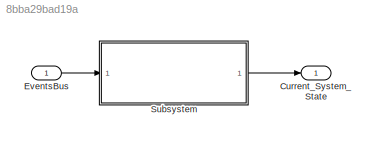
MODEL slx_8bba29bad19a
KIND model
CONFIG AbsTol = auto
CONFIG EnableMultiTasking = off
CONFIG FixedStep = auto
CONFIG MaxStep = auto
CONFIG MinStep = auto
CONFIG RelTol = 1e-3
CONFIG SampleTimeConstraint = Unconstrained
CONFIG SolverName = VariableStepAuto
CONFIG StartTime = 0.0
CONFIG StopTime = inf
BLOCK [Outport] Current_System_State
  OutDataTypeStr = Bus: CurrentStateBus
BLOCK [Inport] EventsBus
  NameLocation = left
  OutDataTypeStr = Bus: EventsBus
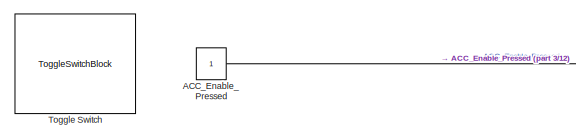
[diagram: Subsystem - part 1/12, top left region]
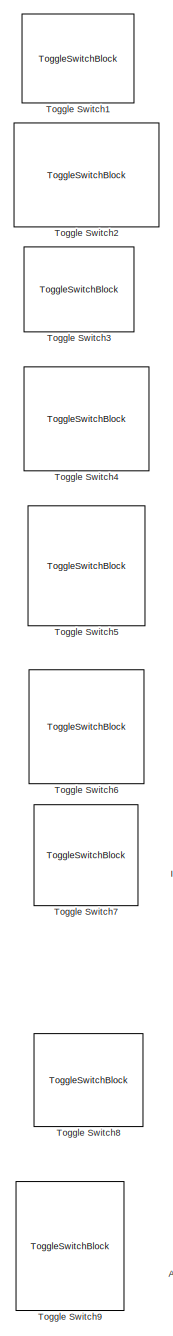
[diagram: Subsystem - part 2/12, top left region]
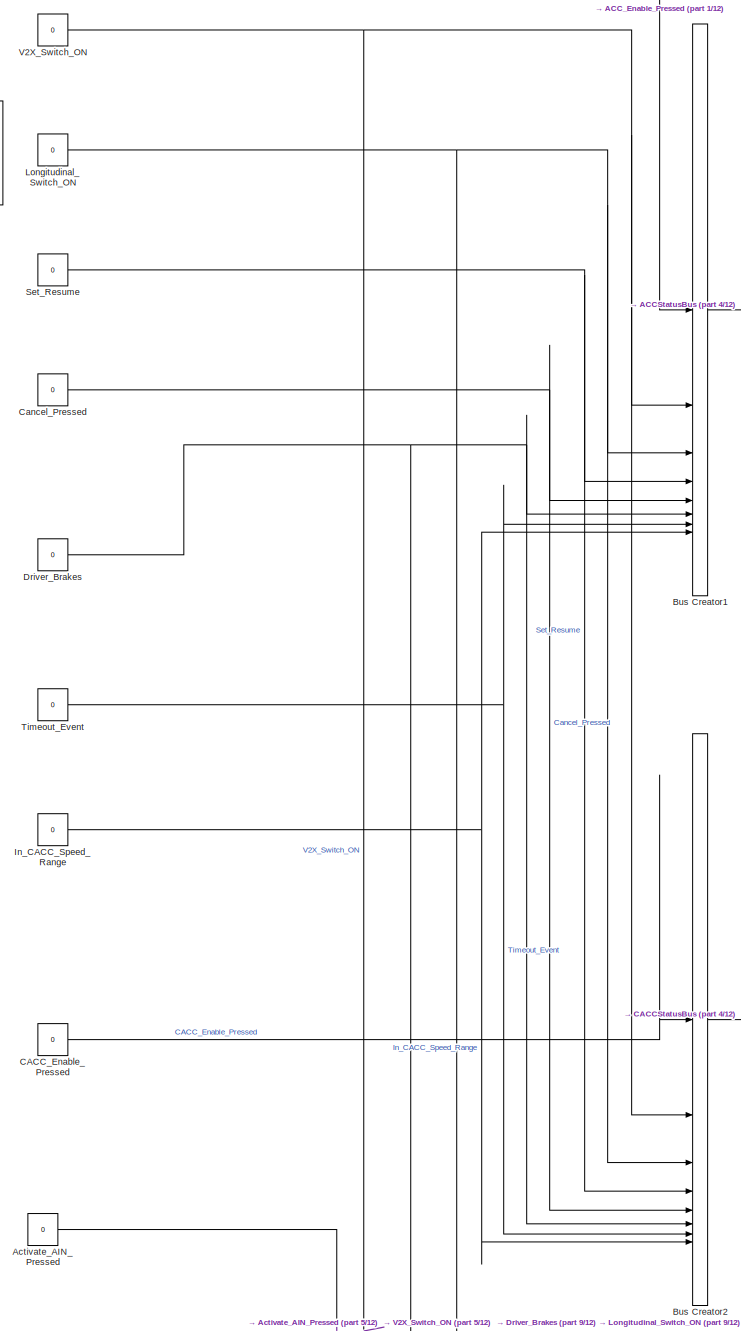
[diagram: Subsystem - part 3/12, top left region]
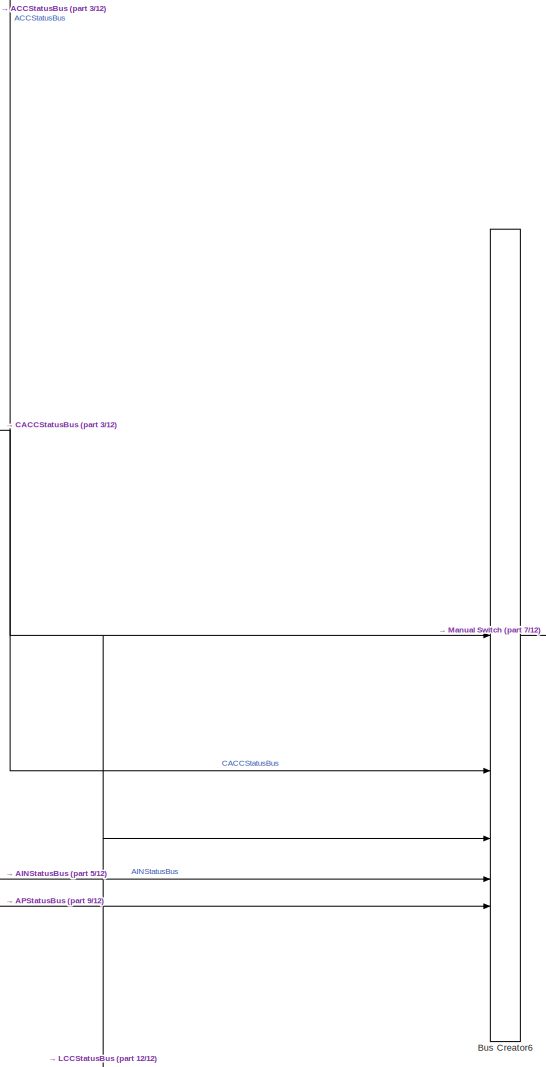
[diagram: Subsystem - part 4/12, top center region]
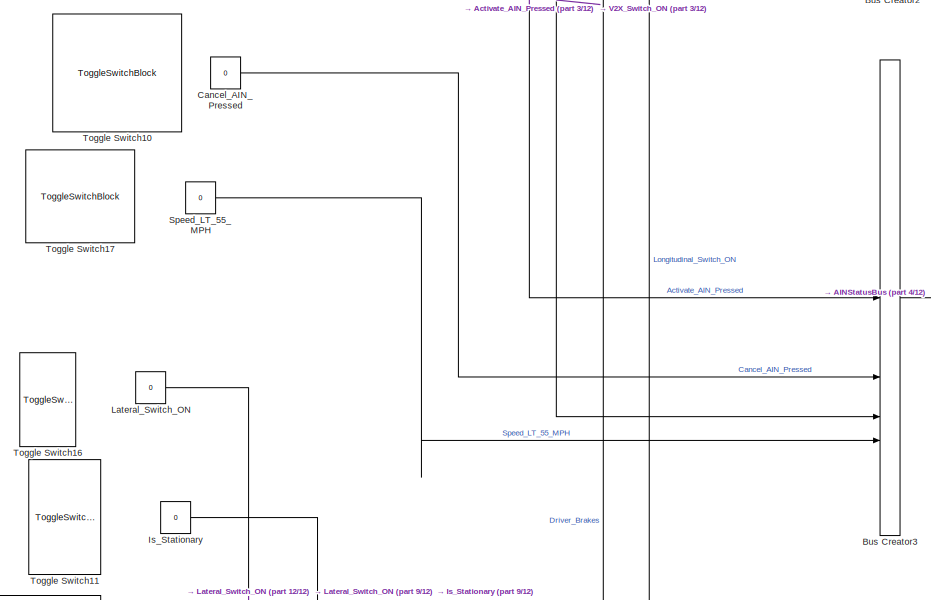
[diagram: Subsystem - part 5/12, middle left region]
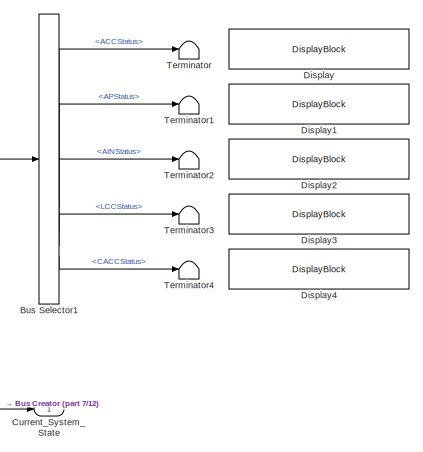
[diagram: Subsystem - part 6/12, middle right region]
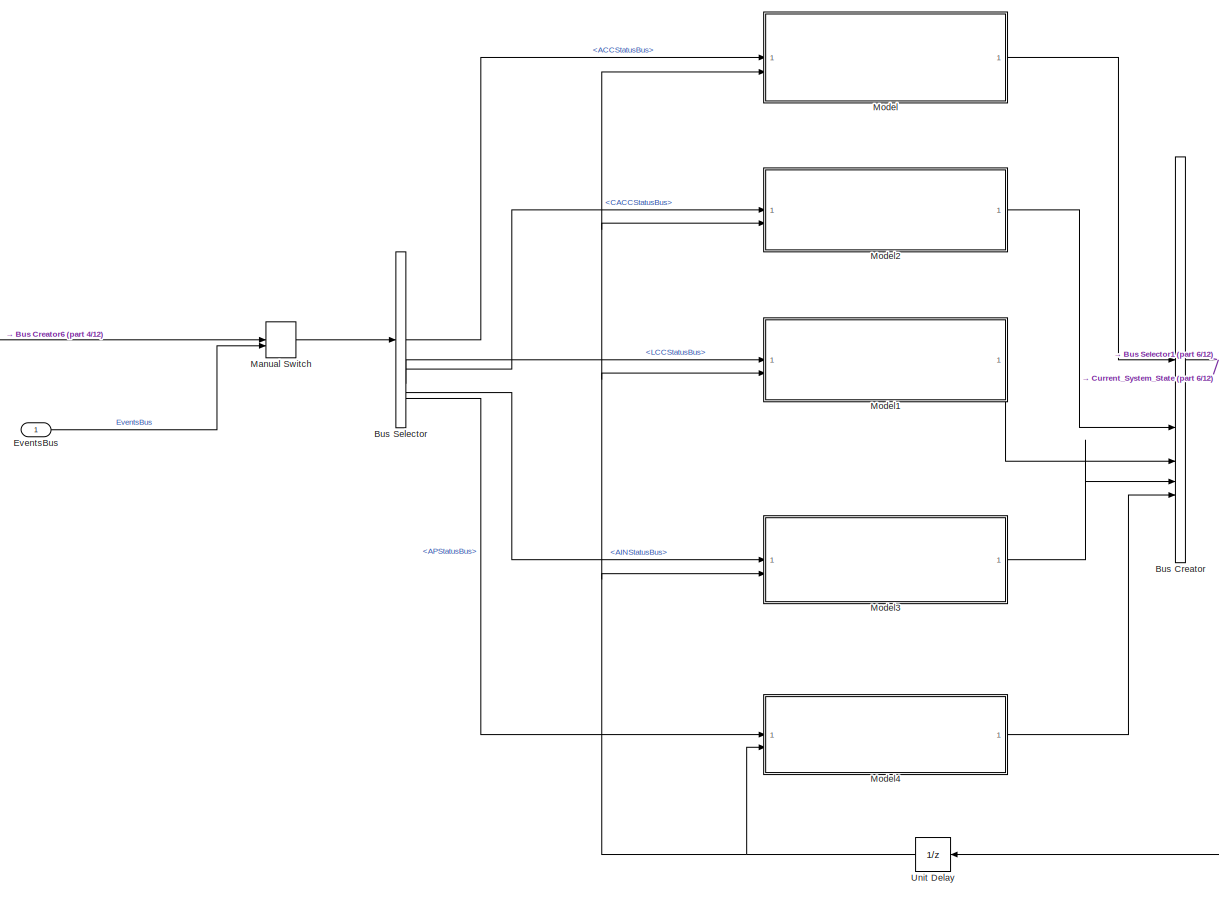
[diagram: Subsystem - part 7/12, middle right region]
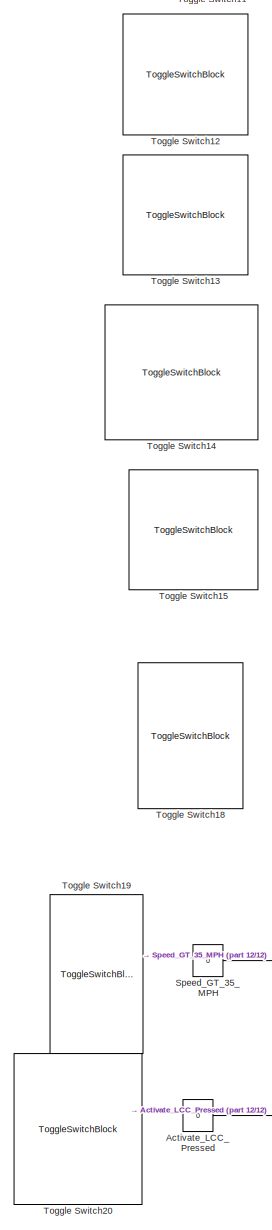
[diagram: Subsystem - part 8/12, middle left region]
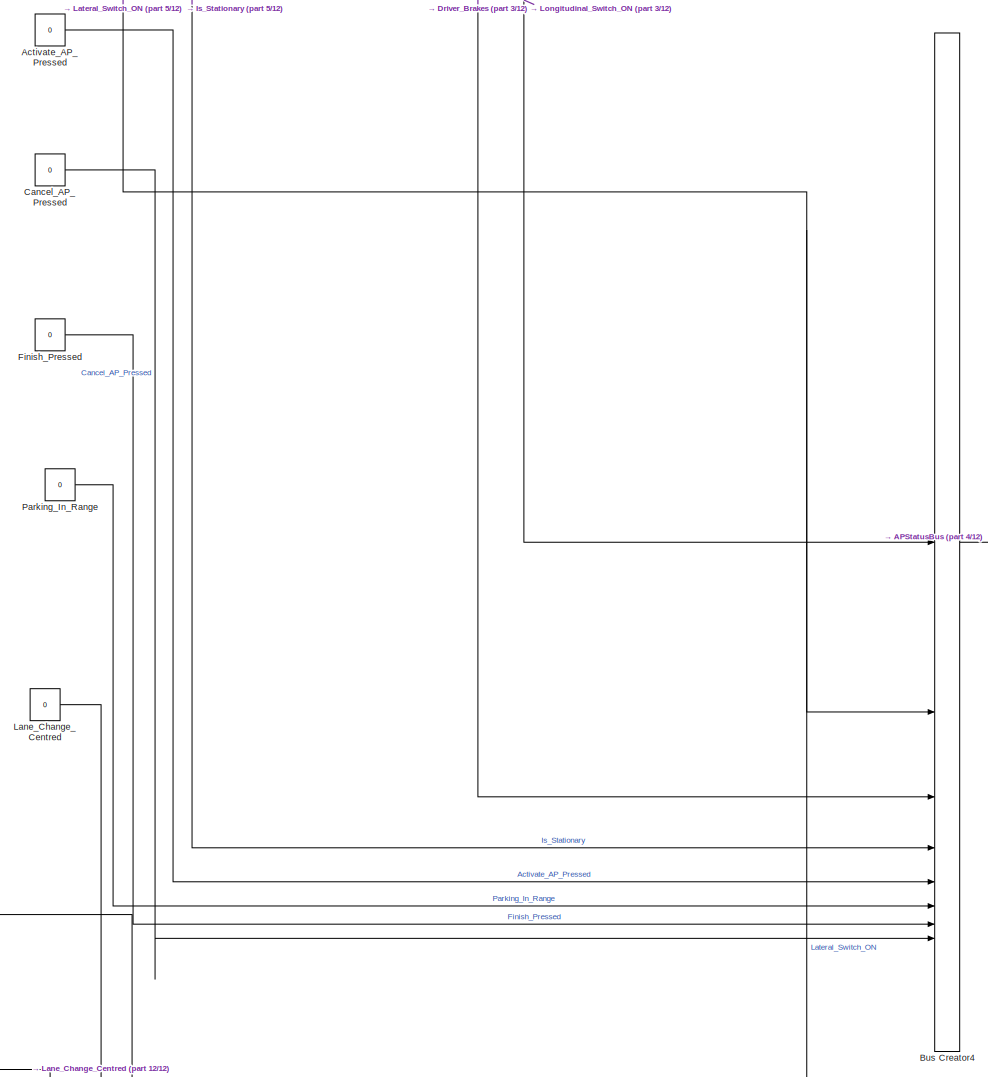
[diagram: Subsystem - part 9/12, middle left region]
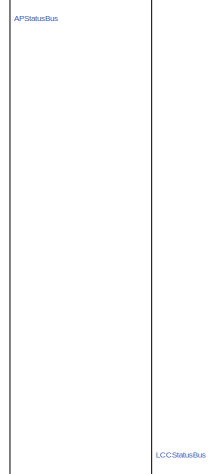
[diagram: Subsystem - part 10/12, middle left region]
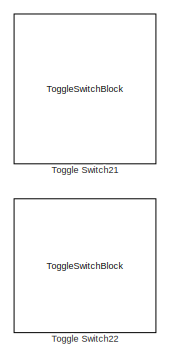
[diagram: Subsystem - part 11/12, bottom left region]
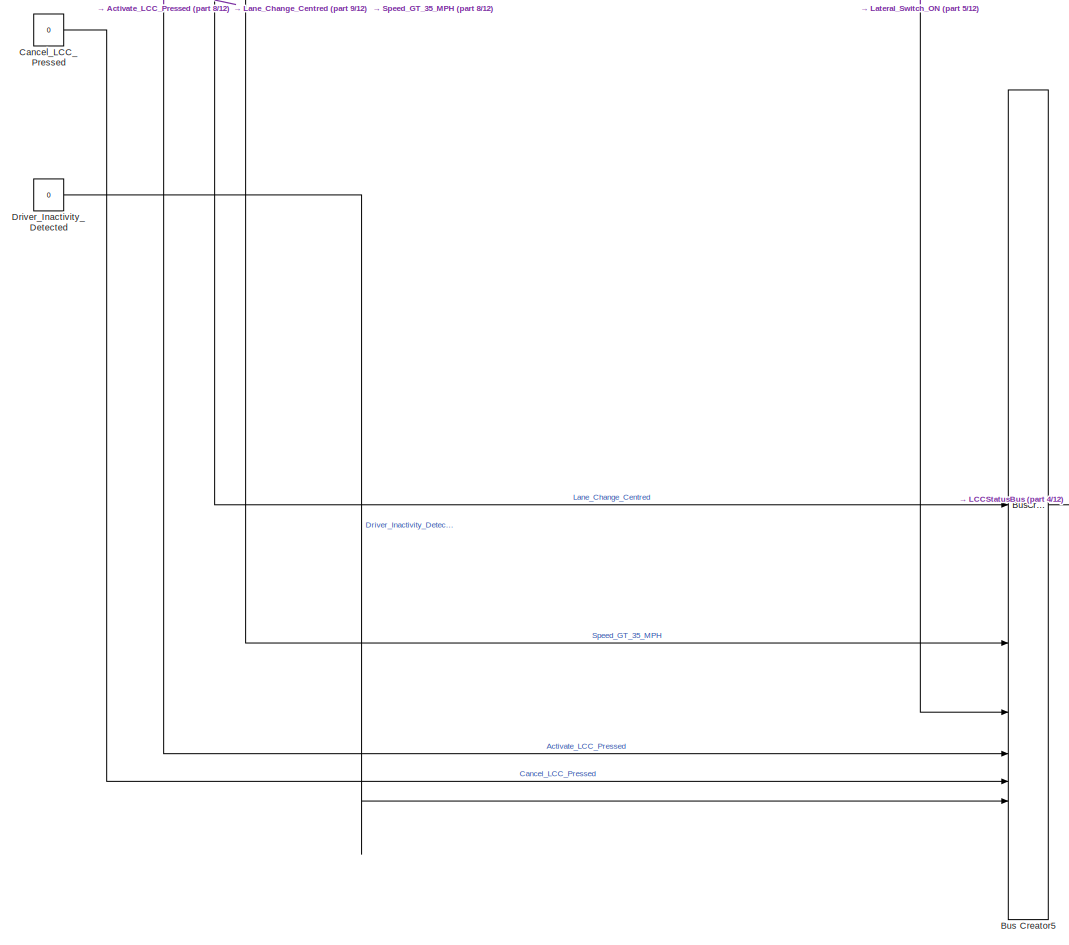
[diagram: Subsystem - part 12/12, bottom left region]
BLOCK [SubSystem] Subsystem
BLOCK [Constant] Subsystem/ACC_Enable_Pressed
  OutDataTypeStr = boolean
BLOCK [Constant] Subsystem/Activate_AIN_Pressed
  OutDataTypeStr = boolean
  Value = 0
BLOCK [Constant] Subsystem/Activate_AP_Pressed
  OutDataTypeStr = boolean
  Value = 0
BLOCK [Constant] Subsystem/Activate_LCC_Pressed
  OutDataTypeStr = boolean
  Value = 0
BLOCK [BusCreator] Subsystem/Bus Creator
  DisplayOption = bar
  InheritFromInputs = off
  Inputs = 5
  OutDataTypeStr = Bus: CurrentStateBus
BLOCK [BusCreator] Subsystem/Bus Creator1
  DisplayOption = bar
  InheritFromInputs = on
  Inputs = 8
  OutDataTypeStr = Bus: ACCStatusBus
BLOCK [BusCreator] Subsystem/Bus Creator2
  DisplayOption = bar
  InheritFromInputs = on
  Inputs = 8
  OutDataTypeStr = Bus: CACCStatusBus
BLOCK [BusCreator] Subsystem/Bus Creator3
  DisplayOption = bar
  InheritFromInputs = on
  Inputs = 4
  OutDataTypeStr = Bus: AINStatusBus
BLOCK [BusCreator] Subsystem/Bus Creator4
  DisplayOption = bar
  InheritFromInputs = on
  Inputs = 8
BLOCK [BusCreator] Subsystem/Bus Creator5
  DisplayOption = bar
  InheritFromInputs = on
  Inputs = 6
  OutDataTypeStr = Bus: LCCStatusBus
BLOCK [BusCreator] Subsystem/Bus Creator6
  DisplayOption = bar
  InheritFromInputs = on
  Inputs = 5
  OutDataTypeStr = Bus: EventsBus
BLOCK [BusSelector] Subsystem/Bus Selector
  OutputSignals = ACCStatusBus,CACCStatusBus,LCCStatusBus,AINStatusBus,APStatusBus
BLOCK [BusSelector] Subsystem/Bus Selector1
  OutputSignals = ACCStatus,APStatus,AINStatus,LCCStatus,CACCStatus
BLOCK [Constant] Subsystem/CACC_Enable_Pressed
  OutDataTypeStr = boolean
  Value = 0
BLOCK [Constant] Subsystem/Cancel_AIN_Pressed
  OutDataTypeStr = boolean
  Value = 0
BLOCK [Constant] Subsystem/Cancel_AP_Pressed
  OutDataTypeStr = boolean
  Value = 0
BLOCK [Constant] Subsystem/Cancel_LCC_Pressed
  OutDataTypeStr = boolean
  Value = 0
BLOCK [Constant] Subsystem/Cancel_Pressed
  OutDataTypeStr = boolean
  Value = 0
BLOCK [Outport] Subsystem/Current_System_State
BLOCK [DisplayBlock] Subsystem/Display
  GridColor = [0.502, 0.502, 0.502]
  LabelPosition = Hide
  Transparency = 1
BLOCK [DisplayBlock] Subsystem/Display1
  GridColor = [0.502, 0.502, 0.502]
  LabelPosition = Hide
  Transparency = 1
BLOCK [DisplayBlock] Subsystem/Display2
  GridColor = [0.502, 0.502, 0.502]
  LabelPosition = Hide
  Transparency = 1
BLOCK [DisplayBlock] Subsystem/Display3
  GridColor = [0.502, 0.502, 0.502]
  LabelPosition = Hide
  Transparency = 1
BLOCK [DisplayBlock] Subsystem/Display4
  GridColor = [0.502, 0.502, 0.502]
  LabelPosition = Hide
  Transparency = 1
BLOCK [Constant] Subsystem/Driver_Brakes
  OutDataTypeStr = boolean
  Value = 0
BLOCK [Constant] Subsystem/Driver_Inactivity_Detected
  OutDataTypeStr = boolean
  Value = 0
BLOCK [Inport] Subsystem/EventsBus
  OutDataTypeStr = Bus: EventsBus
BLOCK [Constant] Subsystem/Finish_Pressed
  OutDataTypeStr = boolean
  Value = 0
BLOCK [Constant] Subsystem/In_CACC_Speed_Range
  OutDataTypeStr = boolean
  Value = 0
BLOCK [Constant] Subsystem/Is_Stationary
  OutDataTypeStr = boolean
  Value = 0
BLOCK [Constant] Subsystem/Lane_Change_Centred
  OutDataTypeStr = boolean
  Value = 0
BLOCK [Constant] Subsystem/Lateral_Switch_ON
  NameLocation = top
  OutDataTypeStr = boolean
  Value = 0
BLOCK [Constant] Subsystem/Longitudinal_Switch_ON
  OutDataTypeStr = boolean
  Value = 0
BLOCK [ManualSwitch] Subsystem/Manual Switch
BLOCK [ModelReference] Subsystem/Model
  ModelNameDialog = acc
  ModelReferenceVersion = 1.53
BLOCK [ModelReference] Subsystem/Model1
  ModelNameDialog = lcc
  ModelReferenceVersion = 1.39
BLOCK [ModelReference] Subsystem/Model2
  ModelNameDialog = cacc
  ModelReferenceVersion = 1.51
BLOCK [ModelReference] Subsystem/Model3
  ModelNameDialog = ain
  ModelReferenceVersion = 1.47
BLOCK [ModelReference] Subsystem/Model4
  ModelNameDialog = ap
  ModelReferenceVersion = 1.39
BLOCK [Constant] Subsystem/Parking_In_Range
  OutDataTypeStr = boolean
  Value = 0
BLOCK [Constant] Subsystem/Set_Resume
  OutDataTypeStr = boolean
  Value = 0
BLOCK [Constant] Subsystem/Speed_GT_35_MPH
  NameLocation = top
  OutDataTypeStr = boolean
  Value = 0
BLOCK [Constant] Subsystem/Speed_LT_55_MPH
  OutDataTypeStr = boolean
  Value = 0
BLOCK [Terminator] Subsystem/Terminator
BLOCK [Terminator] Subsystem/Terminator1
BLOCK [Terminator] Subsystem/Terminator2
BLOCK [Terminator] Subsystem/Terminator3
BLOCK [Terminator] Subsystem/Terminator4
BLOCK [Constant] Subsystem/Timeout_Event
  OutDataTypeStr = boolean
  Value = 0
BLOCK [ToggleSwitchBlock] Subsystem/Toggle Switch
BLOCK [ToggleSwitchBlock] Subsystem/Toggle Switch1
BLOCK [ToggleSwitchBlock] Subsystem/Toggle Switch10
BLOCK [ToggleSwitchBlock] Subsystem/Toggle Switch11
BLOCK [ToggleSwitchBlock] Subsystem/Toggle Switch12
BLOCK [ToggleSwitchBlock] Subsystem/Toggle Switch13
BLOCK [ToggleSwitchBlock] Subsystem/Toggle Switch14
BLOCK [ToggleSwitchBlock] Subsystem/Toggle Switch15
BLOCK [ToggleSwitchBlock] Subsystem/Toggle Switch16
BLOCK [ToggleSwitchBlock] Subsystem/Toggle Switch17
BLOCK [ToggleSwitchBlock] Subsystem/Toggle Switch18
BLOCK [ToggleSwitchBlock] Subsystem/Toggle Switch19
BLOCK [ToggleSwitchBlock] Subsystem/Toggle Switch2
BLOCK [ToggleSwitchBlock] Subsystem/Toggle Switch20
BLOCK [ToggleSwitchBlock] Subsystem/Toggle Switch21
BLOCK [ToggleSwitchBlock] Subsystem/Toggle Switch22
BLOCK [ToggleSwitchBlock] Subsystem/Toggle Switch3
BLOCK [ToggleSwitchBlock] Subsystem/Toggle Switch4
BLOCK [ToggleSwitchBlock] Subsystem/Toggle Switch5
BLOCK [ToggleSwitchBlock] Subsystem/Toggle Switch6
BLOCK [ToggleSwitchBlock] Subsystem/Toggle Switch7
BLOCK [ToggleSwitchBlock] Subsystem/Toggle Switch8
BLOCK [ToggleSwitchBlock] Subsystem/Toggle Switch9
BLOCK [UnitDelay] Subsystem/Unit Delay
  HasFrameUpgradeWarning = on
  SampleTime = -1
BLOCK [Constant] Subsystem/V2X_Switch_ON
  OutDataTypeStr = boolean
  Value = 0
LINE EventsBus:1 -> Subsystem:1
LINE Subsystem/ACC_Enable_Pressed:1 -> Subsystem/Bus Creator1:1
LINE Subsystem/Activate_AIN_Pressed:1 -> Subsystem/Bus Creator3:1
LINE Subsystem/Activate_AP_Pressed:1 -> Subsystem/Bus Creator4:5
LINE Subsystem/Activate_LCC_Pressed:1 -> Subsystem/Bus Creator5:4
LINE Subsystem/Bus Creator1:1 -> Subsystem/Bus Creator6:1
LINE Subsystem/Bus Creator2:1 -> Subsystem/Bus Creator6:2
LINE Subsystem/Bus Creator3:1 -> Subsystem/Bus Creator6:4
LINE Subsystem/Bus Creator4:1 -> Subsystem/Bus Creator6:5
LINE Subsystem/Bus Creator5:1 -> Subsystem/Bus Creator6:3
LINE Subsystem/Bus Creator6:1 -> Subsystem/Manual Switch:1
NET Subsystem/Bus Creator:1 -> Subsystem/Bus Selector1:1, Subsystem/Current_System_State:1, Subsystem/Unit Delay:1
LINE Subsystem/Bus Selector1:1 -> Subsystem/Terminator:1
LINE Subsystem/Bus Selector1:2 -> Subsystem/Terminator1:1
LINE Subsystem/Bus Selector1:3 -> Subsystem/Terminator2:1
LINE Subsystem/Bus Selector1:4 -> Subsystem/Terminator3:1
LINE Subsystem/Bus Selector1:5 -> Subsystem/Terminator4:1
LINE Subsystem/Bus Selector:1 -> Subsystem/Model:1
LINE Subsystem/Bus Selector:2 -> Subsystem/Model2:1
LINE Subsystem/Bus Selector:3 -> Subsystem/Model1:1
LINE Subsystem/Bus Selector:4 -> Subsystem/Model3:1
LINE Subsystem/Bus Selector:5 -> Subsystem/Model4:1
LINE Subsystem/CACC_Enable_Pressed:1 -> Subsystem/Bus Creator2:1
LINE Subsystem/Cancel_AIN_Pressed:1 -> Subsystem/Bus Creator3:2
LINE Subsystem/Cancel_AP_Pressed:1 -> Subsystem/Bus Creator4:8
LINE Subsystem/Cancel_LCC_Pressed:1 -> Subsystem/Bus Creator5:5
NET Subsystem/Cancel_Pressed:1 -> Subsystem/Bus Creator1:5, Subsystem/Bus Creator2:5
NET Subsystem/Driver_Brakes:1 -> Subsystem/Bus Creator1:6, Subsystem/Bus Creator2:6, Subsystem/Bus Creator4:3
LINE Subsystem/Driver_Inactivity_Detected:1 -> Subsystem/Bus Creator5:6
LINE Subsystem/EventsBus:1 -> Subsystem/Manual Switch:2
LINE Subsystem/Finish_Pressed:1 -> Subsystem/Bus Creator4:7
NET Subsystem/In_CACC_Speed_Range:1 -> Subsystem/Bus Creator1:8, Subsystem/Bus Creator2:8
LINE Subsystem/Is_Stationary:1 -> Subsystem/Bus Creator4:4
LINE Subsystem/Lane_Change_Centred:1 -> Subsystem/Bus Creator5:1
NET Subsystem/Lateral_Switch_ON:1 -> Subsystem/Bus Creator4:2, Subsystem/Bus Creator5:3
NET Subsystem/Longitudinal_Switch_ON:1 -> Subsystem/Bus Creator1:3, Subsystem/Bus Creator2:3, Subsystem/Bus Creator4:1
LINE Subsystem/Manual Switch:1 -> Subsystem/Bus Selector:1
LINE Subsystem/Model1:1 -> Subsystem/Bus Creator:3
LINE Subsystem/Model2:1 -> Subsystem/Bus Creator:2
LINE Subsystem/Model3:1 -> Subsystem/Bus Creator:4
LINE Subsystem/Model4:1 -> Subsystem/Bus Creator:5
LINE Subsystem/Model:1 -> Subsystem/Bus Creator:1
LINE Subsystem/Parking_In_Range:1 -> Subsystem/Bus Creator4:6
NET Subsystem/Set_Resume:1 -> Subsystem/Bus Creator1:4, Subsystem/Bus Creator2:4
LINE Subsystem/Speed_GT_35_MPH:1 -> Subsystem/Bus Creator5:2
LINE Subsystem/Speed_LT_55_MPH:1 -> Subsystem/Bus Creator3:4
NET Subsystem/Timeout_Event:1 -> Subsystem/Bus Creator1:7, Subsystem/Bus Creator2:7
NET Subsystem/Unit Delay:1 -> Subsystem/Model1:2, Subsystem/Model2:2, Subsystem/Model3:2, Subsystem/Model4:2, Subsystem/Model:2
NET Subsystem/V2X_Switch_ON:1 -> Subsystem/Bus Creator1:2, Subsystem/Bus Creator2:2, Subsystem/Bus Creator3:3
LINE Subsystem:1 -> Current_System_State:1
note: NET lines group one-source signal fan-out (src -> all destinations, sorted); 1:1 wires keep LINE
